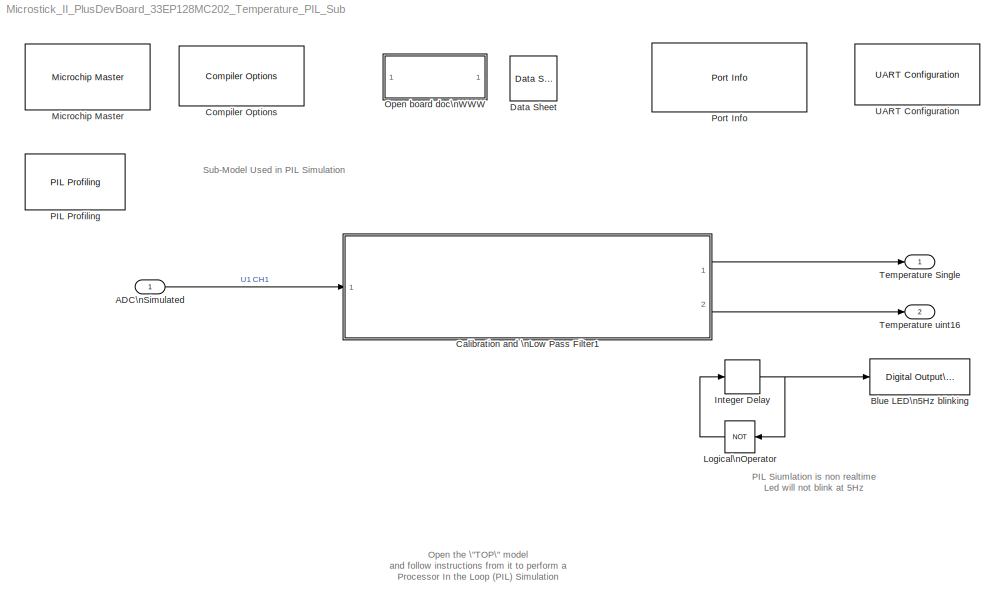
MODEL Microstick_II_PlusDevBoard_33EP128MC202_Temperature_PIL_Sub
KIND model
BLOCK [Inport] ADC\nSimulated
  IconDisplay = Port number
  OutDataTypeStr = uint16
  SID = 690
  SampleTime = .001
BLOCK [Reference] Blue LED\n5Hz blinking  REF=MCHP_Blockset/Digital IO/Digital Output\nWrite
  MCHP_MASTERLINK = Microstick_II_PlusDevBoard_33EP128MC202_Temperature_PIL_Sub/Microchip Master
  MCHP_PORT = {Digital Out}{DOU}1:1:B15;
  ORDERING = None
  PACK = off
  PIN = 15
  PORT = Dynamic Options
  PORT_TXT = B   [ 0 : 15 ]
  Ports = [1]
  SID = 684
  SIMULTANEOUS = off
  SampleTime = -1
  SourceBlock = MCHP_Blockset/Digital IO/Digital Output\nWrite
  SourceType = Output driver for Digital Output Pins
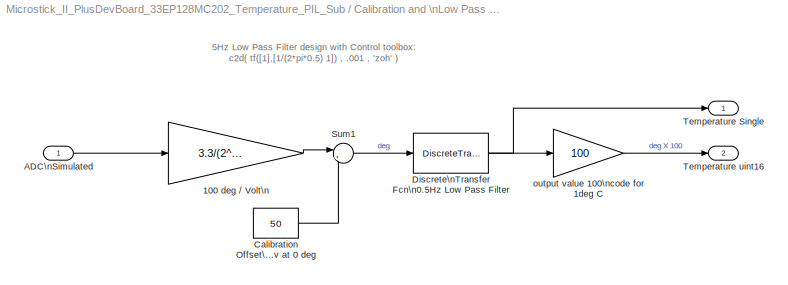
BLOCK [SubSystem] Calibration and \nLow Pass Filter1
  FunctionWithSeparateData = off
  MaskHideContents = off
  MinAlgLoopOccurrences = off
  Opaque = off
  Ports = [1, 2]
  PropExecContextOutsideSubsystem = off
  RTWSystemCode = Auto
  RequestExecContextInheritance = off
  SID = 702
  TreatAsAtomicUnit = on
BLOCK [Gain] Calibration and \nLow Pass Filter1/100 deg // Volt\n
  Gain = 3.3/(2^16) * 100
  OutDataTypeStr = single
  ParamDataTypeStr = Inherit: Inherit via internal rule
  SID = 704
  SaturateOnIntegerOverflow = off
BLOCK [Inport] Calibration and \nLow Pass Filter1/ADC\nSimulated
  IconDisplay = Port number
  OutDataTypeStr = uint16
  SID = 703
  SampleTime = .001
BLOCK [Constant] Calibration and \nLow Pass Filter1/Calibration Offset\n500 mv at 0 deg
  OutDataTypeStr = Inherit: Inherit via back propagation
  SID = 705
  SampleTime = -1
  Value = 50
BLOCK [DiscreteTransferFcn] Calibration and \nLow Pass Filter1/Discrete\nTransfer Fcn\n0.5Hz Low Pass Filter
  Denominator = [1 -0.99686]
  InputPortMap = u0
  Numerator = [0.0031367]
  Ports = [1, 1]
  SID = 706
BLOCK [Sum] Calibration and \nLow Pass Filter1/Sum1
  AccumDataTypeStr = Inherit: Same as first input
  IconShape = round
  InputSameDT = off
  Inputs = |+-
  OutDataTypeStr = Inherit: Inherit via internal rule
  Ports = [2, 1]
  SID = 707
  SaturateOnIntegerOverflow = off
BLOCK [Outport] Calibration and \nLow Pass Filter1/Temperature Single
  IconDisplay = Port number
  OutDataTypeStr = single
  SID = 709
  SampleTime = .001
BLOCK [Outport] Calibration and \nLow Pass Filter1/Temperature uint16
  IconDisplay = Port number
  OutDataTypeStr = uint16
  Port = 2
  SID = 710
  SampleTime = .001
BLOCK [Gain] Calibration and \nLow Pass Filter1/output value 100\ncode for 1deg C
  Gain = 100
  OutDataTypeStr = uint16
  ParamDataTypeStr = Inherit: Inherit via internal rule
  SID = 708
  SaturateOnIntegerOverflow = off
BLOCK [Reference] Compiler Options  REF=MCHP_Blockset/System Configuration/Compiler Options
  AssemblyListing = off
  COMP_LIST = Dynamic Options
  COMP_LIST_TXT = xc16 - v1.26
  DEBUG_INFO = off
  HEAP_SIZE = 0
  LATEST_CMPLR = on
  MCHP_MASTERLINK = Microstick_II_PlusDevBoard_33EP128MC202_Temperature_PIL_Sub/Microchip Master
  MCHP_MULTITHREAD_COMPILATION = on
  MCODE = is more than 32768
  MCONST = in code memory
  MDATA = Can use all available memory
  MPLAB_LINKLIB = default
  MPLAB_LINKLIB1 = default
  MSCALAR = Can use all available memory
  OMF = elf
  OMIT_FRAME_POINTER = off
  OPTIMIZATION_LEVEL = 1
  PROCEDURAL_ABSTRACTION = off
  Ports = []
  Priority = 1
  ProduceHexOutput = off
  SID = 2
  SourceBlock = MCHP_Blockset/System Configuration/Compiler Options
  UNROLL_LOOPS = off
  USE_64BIT_DOUBLE = off
BLOCK [Reference] Data Sheet  REF=MCHP_Blockset/System Info/Data Sheet
  AttributesFormatString = %<cpy_MCHP_Id>
  DOC_FileLastCheckTime = [0 0 0 0 0 0]
  DOC_MCHP_Id = 33FJ64MC802
  DOC_Type = datasheet
  MCHP_MASTERLINK = Microstick_II_PlusDevBoard_33EP128MC202_Temperature_PIL_Sub/Microchip Master
  Ports = []
  SID = 6
  SourceBlock = MCHP_Blockset/System Info/Data Sheet
  cpy_MCHP_Id = 33EP128MC202
BLOCK [Delay] Integer Delay
  DelayLength = 1
  InitialCondition = 0
  InputPortMap = u0
  InputProcessing = Inherited
  Ports = [1, 1]
  SID = 685
  SampleTime = .1
BLOCK [Logic] Logical\nOperator
  AllPortsSameDT = off
  Operator = NOT
  OutDataTypeStr = boolean
  Ports = [1, 1]
  SID = 686
BLOCK [Reference] Microchip Master  REF=MCHP_Blockset/System Configuration/Microchip Master
  ACTIV_PLL = on
  ACTIV_PLL_spd = on
  AIVTDIS = Disable Alternate Vector Table
  ALTADREF = AVREF+/AVREF- are mapped to RA9/RA10
  ALTCMPI = C1INC is on RB13; C2INC is on RB9 and C3INC is on RA0
  ALTCVREF = CVREF+/CVREF- are mapped to RA9/RA10
  ALTI2C = I2C mapped to SDA1/SCL1 pins
  ALTI2C1 = I2C1 mapped to SDA1/SCL1 pins
  ALTI2C2 = I2C2 mapped to SDA2/SCL2 pins
  ALTPMP = EPMP pins are in default location mode
  ALTQIO = QEA1; QEB1; INDX1 are selected as inputs to QEI1
  ALTRB6 = Append the RP6/ASCL1/PMPD6 functions of RB6 to RA1 pin functions
  ALTSS1 = SS1A is selected as the I/O pin for SPI1
  ALTVREF = Voltage reference input; ADC =RA9/RA10 Comparator =RA9;RA10
  APL = Aux Flash Code protect is disabled
  APLK = Aux Flash Write Protection or Code Protection is Enabled
  ATMOD8 = Not used
  AWRP = Aux Flash may be written
  BACKBUG = Not used
  BKBUG = Device resets into Operational mode
  BODENV = 2.7V
  BOOTISA = Boot code and Exception code is MIPS32
  BOREN = Disable
  BOREN0 = Enabled
  BOREN1 = BOR Enabled [When BOREN=1]
  BORV = Brown-out Reset set at 2.0V
  BSEN = No Boot Segment
  BSLIM = Not used
  BSS = No boot program Flash segment
  BSS2 = No Boot Segment
  BTMODE = Device is in Single Boot (legacy) mode
  BTSWP = Not used
  BUSYFLAG = Dynamic Options
  BUSYFLAG_TXT = None
  BWP = Protection Disabled
  BWRP = Boot Segment may be written
  CMPPOL0 = Hysteresis is applied to falling edge
  CMPPOL1 = Hysteresis is applied to falling edge
  COE = Reset Into Operational Mode
  CP = Protection Disabled
  CSEQ = Not used
  CSS = No Protection (other than CWRP)
  CTXT1 = Not Assigned
  CTXT2 = Not Assigned
  CWRP = Configuration Segment may be written
  DBCC = Not used
  DBGPER = Allow CPU access to all permission regions
  DEBUG = Debugger is disabled
  DFMCY = Not used
  DISUVREG = Regulator is disabled
  DMTCNT = 2^31 (2147483648)
  DMTEN = Dead Man Timer is Enabled and cannot be disabled by software
  DMTINTV = Window/Interval value is 127/128 counter value
  DMTIVT = Not used
  DSBOREN = Deep Sleep BOR enabled in Deep Sleep
  DSLPBOR = Deep Sleep BOR enabled in Deep Sleep
  DSSWEN = Deep Sleep is controlled by the register bit DSEN
  DSWDTEN = DSWDT enabled
  DSWDTOSC = DSWDT uses Low Power RC Oscillator (LPRC)
  DSWDTPS = 1:2;147;483;648 (25.7 Days)
  EBS = No Boot EEPROM
  EJTAGBEN = Normal EJTAG functionality
  ESS = No Segment Data EEPROM
  EXTDDRSIZE = External DDR2 Size is 128 MB
  FCANIO = Default CAN I/O
  FCKSM = Clock switching is enabled;Fail-safe Clock Monitor is disabled
  FCKSMEN = Sw Disabled; Mon Disabled
  FDMTEN = Deadman Timer is disabled
  FECCCON = ECC and Dynamic ECC are disabled (ECCCON bits are writable)
  FETHIO = Default Ethernet I/O
  FMIIEN = MII Enabled
  FNOSC = Internal Fast RC (FRC)
  FOS = Internal Fast RC
  FOSFPR = HS3 w/PLL 16x
  FPBDIV = Pb_Clk is Sys_Clk/8
  FPLLICLK = FRC is input to the System PLL
  FPLLIDIV = 8x Divider
  FPLLMUL = 24x Multiplier
  FPLLMULT = PLL Multiply by 128
  FPLLODIV = 32x Divider
  FPLLRNG = 34-68 MHz Input
  FPR = ECIO w/ PLL 16x
  FPWRT = 128ms
  FRANGE = High Range
  FSLEEP = Flash is powered down when the device is in Sleep mode
  FSOSCEN = Enable SOSC
  FSRSSEL = SRS Priority 7
  FUSBIDIO = Controlled by the USB Module
  FVBUSONIO = Controlled by USB Module
  FWDTEN = Disable
  FWDTWINSZ = Window size is 25%
  FWPSA = 1:512
  FWPSA0 = 1:128
  FWPSB = 1:16
  GCP = General Segment Code protect is disabled
  GSS = User program memory is not code-protected
  GSS0 = No protection
  GSSK = General Segment Write Protection or Code Protection is Enabled
  GWRP = General Segment may be written
  HPOL = PWM module high side output pins have active-high output polarity
  HYST0 = 45 mV Hysteresis
  HYST1 = 45 mV Hysteresis
  I2C1SEL = Use Default SCL1/SDA1 Pins For I2C1
  I2C2SEL = I2C2 is multiplexed to SDA2/RA3 and SCL2/RA2
  ICESEL = Communicate on PGEC1/PGED1
  ICS = Communicate on PGEC1 and PGED1
  IESO = Start up with FRC; then switch
  IOL1WAY = Allow multiple reconfigurations
  JTAGEN = Disable
  LPCFG = Disabled - regardless of RETEN
  LPOL = PWM module low side output pins have active-high output polarity
  LPRCSEL = High Power; High Accuracy Mode
  LVRCFG = Low Voltage regulator is not available
  MCHPVAR = MCHP.fcy.periph=MCHP_Fun.Hex2num('[418F004544924924]');MCHP.fcy.MIPS=MCHP_Fun.Hex2num('[418F004544924924]');MCHP.PowerSave=0;MCHP.TimeStepFactor=MCHP_Fun.Hex2num('[3FF0000126EBBADF]');MCHP.TimeStep_Timer=1;MCHP.NTIMERS=5;MCHP.id.name='33EP128MC202';MCHP.id.N=reshape([33 128 202],1,3);MCHP.id.L=reshape({ 'EP','MC',''},1,3);MCHP.id.Arch=3;MCHP.periph.PPS.reg_RPINRx=reshape([-1 1 1 -1 -1 -1 1 -1 -1 -...<+5789ch>
  MCHP_CRC = 3068598
  MCHP_PLLRegisters = [5    245  16387     -1]
  MCHP_TIMER_REQUEST = {Time Step}{TS}0:2:3:1:[]:65013.92857142857;
  MCHP_TIMER_RESULT = [1 65012.928571428594 ]
  MCLRE = Enabled
  MIPS = 65.013928571428565 * 1e6
  MIPS_DESIRED = 65e6
  MIPS_DESIRED_spd = 65e6
  ON = Not used
  OSCILLATOR_SELECT = Internal Fast RC (FRC)
  OSCILLATOR_SELECT_spd = Internal Fast RC (FRC)
  OSCIOFCN = OSCO/CLKO/RA3 functions as CLKO (FOSC/2)
  OSCIOFNC = OSC2 is general purpose digital I/O pin
  PGL1WAY = Allow only one reconfiguration
  PICREF = 33EP128MC202
  PLL96MHZ = 96 MHz PLL Startup is enabled automatically on start-up
  PLLDIV = PLL is disabled
  PLLKEN = Clock switch to PLL source will wait until the PLL lock signal is valid.
  PLLSS = PLL is fed by the Primary oscillator
  PLL_96MHZ = Enabled
  PMDL1WAY = Allow only one reconfiguration
  POSCBOOST = Boost the kick start of the oscillator
  POSCFREQ = Primary oscillator/external clock input frequency greater than 8MHz
  POSCGAIN = 2x gain setting
  POSCMD = Primary Oscillator Disabled
  POSCMOD = Primary Oscillator Disabled
  POWERSAVE = off
  PWMLOCK = PWM registers may be written without key sequence
  PWMPIN = PWM module pins controlled by PORT register at device Reset
  PWP = Disable
  PWRTEN = PWRT enabled
  Ports = []
  Priority = 1
  QUARTZ = 7.37e+06
  QUARTZ_spd = 7.37e+06
  RBS = No Boot RAM
  RES = Not used
  RES1 = Not used
  RES2 = Not used
  RESERVED1 = Not used
  RETCFG = Retention regulator is not available
  RSS = No Secure RAM
  RSTPRI = Device will obtain reset instruction from Primary flash
  RTCBAT = RTC operation is continued through VBAT
  RTCOSC = RTCC uses Secondary Oscillator (SOSC)
  SEQNUM = Not used
  SID = 1
  SMCLR = MCLR pin generates a normal system Reset
  SOSCBOOST = Boost the kick start of the oscillator
  SOSCGAIN = 2x gain setting
  SOSCSEL = Secondary oscillator configured for high-power operation
  SOSCSRC = Analog Mode for use with crystal
  SSS = No Secure Segment
  SWRP = Secure segment may be written
  SourceBlock = MCHP_Blockset/System Configuration/Microchip Master
  TEMP = Not used
  TIMESTEP_REF = Timer  ( 0.001s + [0.00010987%] ==> 0.001s )
  TRCEN = Trace features in the CPU are enabled
  TSEQ = Not used
  UPLLEN = USB PLL is enabled
  UPLLFSEL = USB PLL input is 24 MHz
  UPLLIDIV = 12x Divider
  USERID = Not used
  VBTBOR = VBAT BOR enabled
  WDT = Disable
  WDTCLK = WDT uses LPRC
  WDTCMX = WDT clock source is determined by the WDTCLK Configuration bits
  WDTEN = Disable
  WDTPOST = 1:32768
  WDTPRE = 1:128
  WDTPS = 1:32768
  WDTSPGM = WDT stops during Flash programming
  WDTWIN = WDT Window is 25% of WDT period
  WINDIS = Watchdog Timer in Non-Window mode
  WPCFG = Disable
  WPDIS = Disable
  WPEND = Write Protect from WPFP to the last page of memory
  WPFP = Page 127 (0x1FC00)
  WUTSEL = Default regulator start-up time used
  WWDTEN = Non-Window mode
  nSEQNUM = Not used
BLOCK [SubSystem] Open board doc\nWWW
  FunctionWithSeparateData = off
  MaskDisplay = disp('Microstick Plus\\nDev Board');\n
  MaskHideContents = off
  MaskIconFrame = on
  MaskIconOpaque = on
  MaskIconRotate = none
  MaskIconUnits = autoscale
  MaskPortRotate = default
  MinAlgLoopOccurrences = off
  Opaque = off
  OpenFcn = web('www.microchip.com/www.microchip.com/en556208','-browser');\npause(1);\nweb('www.microchip.com/TCAD0014178791','-browser');
  Ports = []
  PropExecContextOutsideSubsystem = off
  RTWSystemCode = Auto
  RequestExecContextInheritance = off
  SID = 642
BLOCK [Reference] PIL Profiling  REF=MCHP_Blockset/Profiling/PIL Profiling
  Info = Timer 2:  Resol: 15.38131939(ns)  -  Max value: 1.00801(ms)
  MCHP_MASTERLINK = Microstick_II_PlusDevBoard_33EP128MC202_Temperature_PIL_Sub/Microchip Master
  MCHP_TIMER_REQUEST = {TIMER for PIL}{TmrCfg}20:1:1:0:[]:65536;
  MCHP_TIMER_RESULT = [2 65535 ]
  Ports = []
  SID = 698
  SourceBlock = MCHP_Blockset/Profiling/PIL Profiling
  SourceType = Timer Configuration
  TIMER_Resolution = Dynamic Options
  TIMER_Resolution_TXT = Resol: 0.01538(us)  -  MaxPer: 1.01(ms)
  TIMER_Ressource = Dynamic Options
  TIMER_Ressource_Custom = [1]
  TIMER_Ressource_TXT = No constraints [Prefered]
BLOCK [Reference] Port Info  REF=MCHP_Blockset/System Info/Port Info
  MCHP_MASTERLINK = Microstick_II_PlusDevBoard_33EP128MC202_Temperature_PIL_Sub/Microchip Master
  Ports = []
  SID = 132
  SourceBlock = MCHP_Blockset/System Info/Port Info
BLOCK [Outport] Temperature Single
  IconDisplay = Port number
  OutDataTypeStr = single
  SID = 691
  SampleTime = .001
BLOCK [Outport] Temperature uint16
  IconDisplay = Port number
  OutDataTypeStr = uint16
  Port = 2
  SID = 692
  SampleTime = .001
BLOCK [Reference] UART Configuration  REF=MCHP_Blockset/BUS UART/UART Configuration
  ALT_IO = on
  BAUD_Choice = Dynamic Options
  BAUD_Choice_IR = Dynamic Options
  BAUD_Choice_IR_InitSeq = Dynamic Options
  BAUD_Choice_IR_InitSeq_TXT = 0
  BAUD_Choice_IR_TXT = []
  BAUD_Choice_InitSeq = Dynamic Options
  BAUD_Choice_InitSeq_TXT = 110         [-0.00%]
  BAUD_Choice_TXT = 115200         [+0.06%]
  BAUD_Custom = 115200
  BAUD_Custom_InitSeq = 0
  FlowControl = None
  IRDA = off
  InitSequence = 'Hello World'
  InitSequence_chkbox = off
  MCHP_COM_ExtPil = on
  MCHP_MASTERLINK = Microstick_II_PlusDevBoard_33EP128MC202_Temperature_PIL_Sub/Microchip Master
  MCHP_PORT = {UART1  Rx}{U1RX}3:0:P43;{UART1  Tx}{U1TX}3:1:P42;
  PIN_CTS = Dynamic Options
  PIN_CTS_TXT = B0 / P32 / Pin[4]
  PIN_RTS = Dynamic Options
  PIN_RTS_TXT = A4 / P20 / Pin[12]
  PIN_RX = Dynamic Options
  PIN_RX_TXT = B11 / P43 / Pin[22]
  PIN_TX = Dynamic Options
  PIN_TX_TXT = B10 / P42 / Pin[21]
  Ports = []
  RX_CIRCULAR_SIZE = 256
  RX_IMPLEMENTATION = Circular Buffer
  RX_INT_PRIORITY = 5
  RX_INT_WHEN = receive 1 character
  SID = 165
  SourceBlock = MCHP_Blockset/BUS UART/UART Configuration
  SourceType = Configuration for UART peripheral
  TX_CIRCULAR_SIZE = 256
  TX_DMA_CHANNEL = 0   (Lowest Priority)
  TX_DMA_SIZE = []
  TX_IMPLEMENTATION = Circular Buffer
  TX_INT_PRIORITY = 4
  TX_INT_WHEN = is empty
  UART_REF = 1
ANNOTATION (root): Open the \"TOP\" model\nand follow instructions from it to perform a\nProcessor In the Loop (PIL) Simulation
ANNOTATION (root): PIL Siumlation is non realtime\nLed will not blink at 5Hz
ANNOTATION (root): Sub-Model Used in PIL Simulation
ANNOTATION Calibration and \nLow Pass Filter1: 5Hz Low Pass Filter design with Control toolbox:\nc2d( tf([1],[1/(2*pi*0.5) 1]) , .001 , 'zoh' )
LINE ADC\nSimulated:1 -> Calibration and \nLow Pass Filter1:1
LINE Calibration and \nLow Pass Filter1/100 deg // Volt\n:1 -> Calibration and \nLow Pass Filter1/Sum1:1
LINE Calibration and \nLow Pass Filter1/ADC\nSimulated:1 -> Calibration and \nLow Pass Filter1/100 deg // Volt\n:1
LINE Calibration and \nLow Pass Filter1/Calibration Offset\n500 mv at 0 deg:1 -> Calibration and \nLow Pass Filter1/Sum1:2
NET Calibration and \nLow Pass Filter1/Discrete\nTransfer Fcn\n0.5Hz Low Pass Filter:1 -> Calibration and \nLow Pass Filter1/Temperature Single:1, Calibration and \nLow Pass Filter1/output value 100\ncode for 1deg C:1
LINE Calibration and \nLow Pass Filter1/Sum1:1 -> Calibration and \nLow Pass Filter1/Discrete\nTransfer Fcn\n0.5Hz Low Pass Filter:1
LINE Calibration and \nLow Pass Filter1/output value 100\ncode for 1deg C:1 -> Calibration and \nLow Pass Filter1/Temperature uint16:1
LINE Calibration and \nLow Pass Filter1:1 -> Temperature Single:1
LINE Calibration and \nLow Pass Filter1:2 -> Temperature uint16:1
NET Integer Delay:1 -> Blue LED\n5Hz blinking:1, Logical\nOperator:1
LINE Logical\nOperator:1 -> Integer Delay:1
note: NET lines group one-source signal fan-out (src -> all destinations, sorted); 1:1 wires keep LINE
